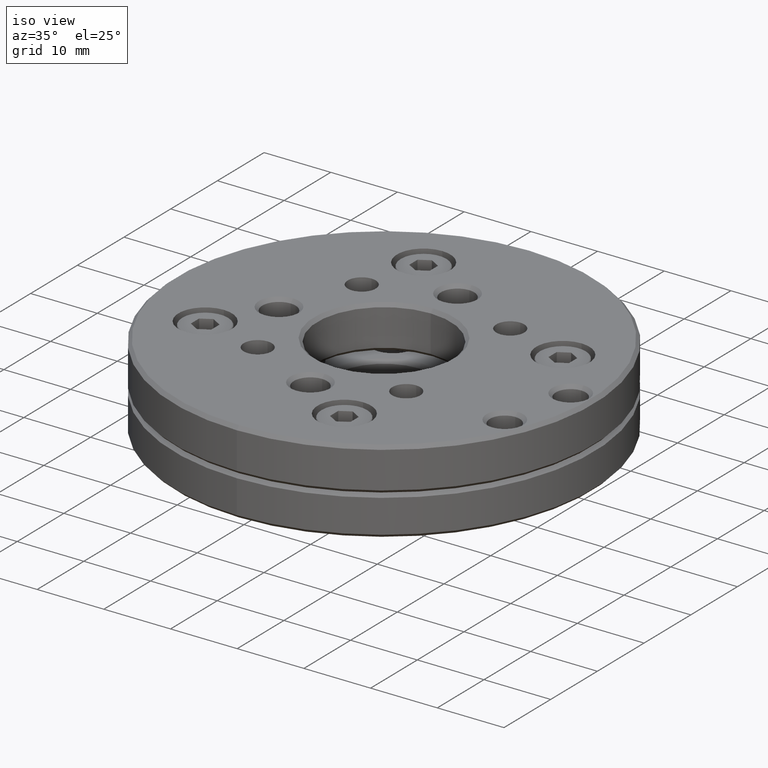
[diagram: clean part render]
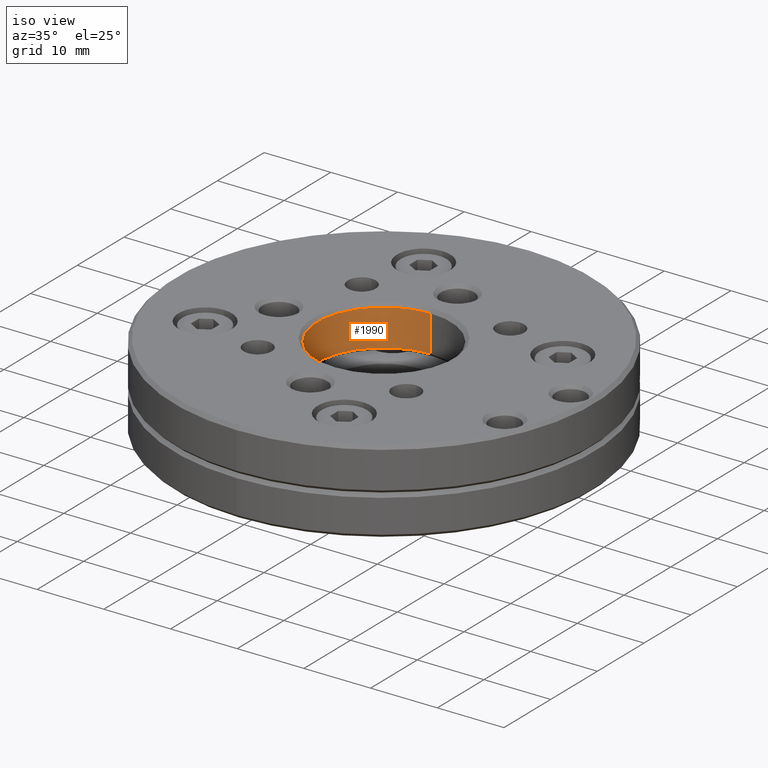
[diagram: same view with one face highlighted and labeled with its STEP entity id]
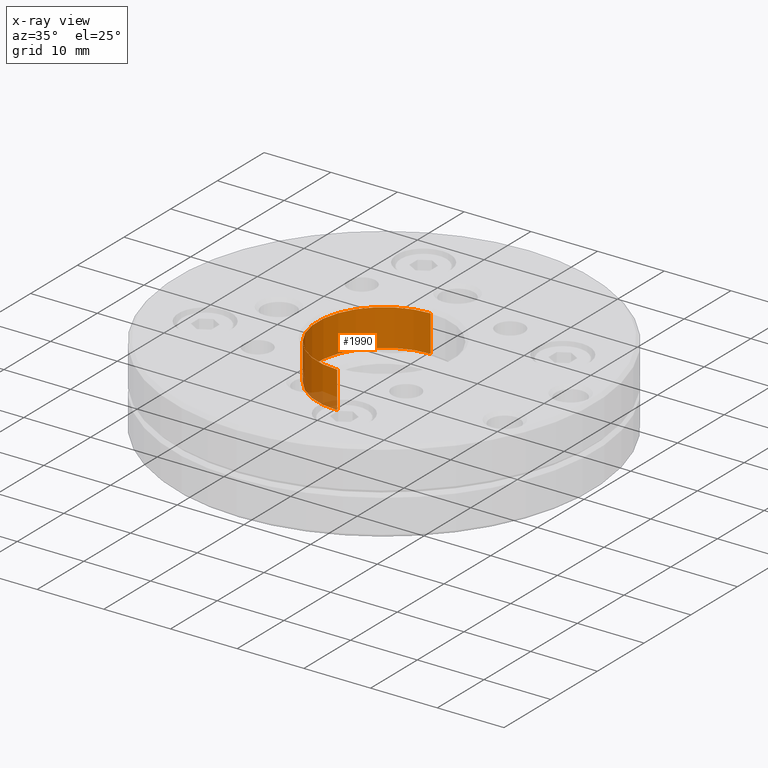
[diagram: x-ray of the same camera — body ghosted, the highlighted face saturated]
A machine part, iso view. The second image highlights one B-rep face of the part: STEP entity #1990.
The next image is the same camera in x-ray: the body ghosted, the highlighted face saturated — about 5% of this face is hidden behind the body in this view.
In plain terms, the highlighted cylindrical surface (partial cylindrical patch) has radius 10 mm, axis along (-0, -0, -1).
Its self-contained STEP definition (entity closure, byte-faithful):
#337 = DIRECTION ( 'NONE',  ( -5.551115123125782702E-17, -8.122900918572822600E-42, -1.000000000000000000 ) ) ;
#441 = CARTESIAN_POINT ( 'NONE',  ( 2.775557561562662705E-17, 4.061450459286078025E-42, 0.4999999999999588107 ) ) ;
#631 = AXIS2_PLACEMENT_3D ( 'NONE', #441, #6567, #2986 ) ;
#841 = DIRECTION ( 'NONE',  ( 5.551115123125782702E-17, 8.122900918572823875E-42, 1.000000000000000000 ) ) ;
#1151 = CARTESIAN_POINT ( 'NONE',  ( 1.405058040648938630E-15, -10.00000000000000000, 0.4999999999999588107 ) ) ;
#1232 = CIRCLE ( 'NONE', #5858, 10.00000000000000000 ) ;
#1263 = VERTEX_POINT ( 'NONE', #1151 ) ;
#1288 = CARTESIAN_POINT ( 'NONE',  ( 1.804112415015856205E-16, 10.00000000000000000, 0.4999999999999588107 ) ) ;
#1440 = DIRECTION ( 'NONE',  ( -5.551115123125782702E-17, -8.122900918572822600E-42, -1.000000000000000000 ) ) ;
#1520 = ORIENTED_EDGE ( 'NONE', *, *, #5200, .T. ) ;
#1718 = ORIENTED_EDGE ( 'NONE', *, *, #6391, .T. ) ;
#1940 = EDGE_CURVE ( 'NONE', #5562, #3101, #6584, .T. ) ;
#1990 = ADVANCED_FACE ( 'NONE', ( #6484 ), #3408, .F. ) ;
#2008 = EDGE_CURVE ( 'NONE', #5562, #3630, #1232, .T. ) ;
#2010 = LINE ( 'NONE', #6634, #5670 ) ;
#2415 = VECTOR ( 'NONE', #2420, 1000.000000000000000 ) ;
#2420 = DIRECTION ( 'NONE',  ( -5.551115123125782702E-17, -8.122900918572822600E-42, -1.000000000000000000 ) ) ;
#2986 = DIRECTION ( 'NONE',  ( 0.0000000000000000000, -1.000000000000000000, 0.0000000000000000000 ) ) ;
#3038 = CARTESIAN_POINT ( 'NONE',  ( 3.608224830031758756E-16, 10.00000000000000000, 6.500000000000000000 ) ) ;
#3046 = CARTESIAN_POINT ( 'NONE',  ( 1.804112415015856698E-16, 10.00000000000000000, 5.999999999999957367 ) ) ;
#3101 = VERTEX_POINT ( 'NONE', #1288 ) ;
#3408 = CYLINDRICAL_SURFACE ( 'NONE', #4142, 10.00000000000000000 ) ;
#3443 = CARTESIAN_POINT ( 'NONE',  ( 3.608224830031758756E-16, 5.279885597072334881E-41, 6.500000000000000000 ) ) ;
#3630 = VERTEX_POINT ( 'NONE', #5594 ) ;
#3976 = CIRCLE ( 'NONE', #631, 10.00000000000000000 ) ;
#4142 = AXIS2_PLACEMENT_3D ( 'NONE', #3443, #1440, #4457 ) ;
#4457 = DIRECTION ( 'NONE',  ( 0.0000000000000000000, 1.000000000000000000, 0.0000000000000000000 ) ) ;
#5200 = EDGE_CURVE ( 'NONE', #1263, #3101, #3976, .T. ) ;
#5461 = CARTESIAN_POINT ( 'NONE',  ( 3.330669073875445955E-16, 4.873740551143660169E-41, 5.999999999999957367 ) ) ;
#5562 = VERTEX_POINT ( 'NONE', #3046 ) ;
#5594 = CARTESIAN_POINT ( 'NONE',  ( 1.405058040648938630E-15, -10.00000000000000000, 5.999999999999957367 ) ) ;
#5646 = ORIENTED_EDGE ( 'NONE', *, *, #2008, .T. ) ;
#5670 = VECTOR ( 'NONE', #337, 1000.000000000000000 ) ;
#5721 = ORIENTED_EDGE ( 'NONE', *, *, #1940, .F. ) ;
#5858 = AXIS2_PLACEMENT_3D ( 'NONE', #5461, #841, #6002 ) ;
#6002 = DIRECTION ( 'NONE',  ( 0.0000000000000000000, -1.000000000000000000, 0.0000000000000000000 ) ) ;
#6391 = EDGE_CURVE ( 'NONE', #3630, #1263, #2010, .T. ) ;
#6484 = FACE_OUTER_BOUND ( 'NONE', #6630, .T. ) ;
#6567 = DIRECTION ( 'NONE',  ( -5.551115123125782702E-17, -8.122900918572823875E-42, -1.000000000000000000 ) ) ;
#6584 = LINE ( 'NONE', #3038, #2415 ) ;
#6630 = EDGE_LOOP ( 'NONE', ( #5646, #1718, #1520, #5721 ) ) ;
#6634 = CARTESIAN_POINT ( 'NONE',  ( 1.585469282150528738E-15, -10.00000000000000000, 6.500000000000000000 ) ) ;